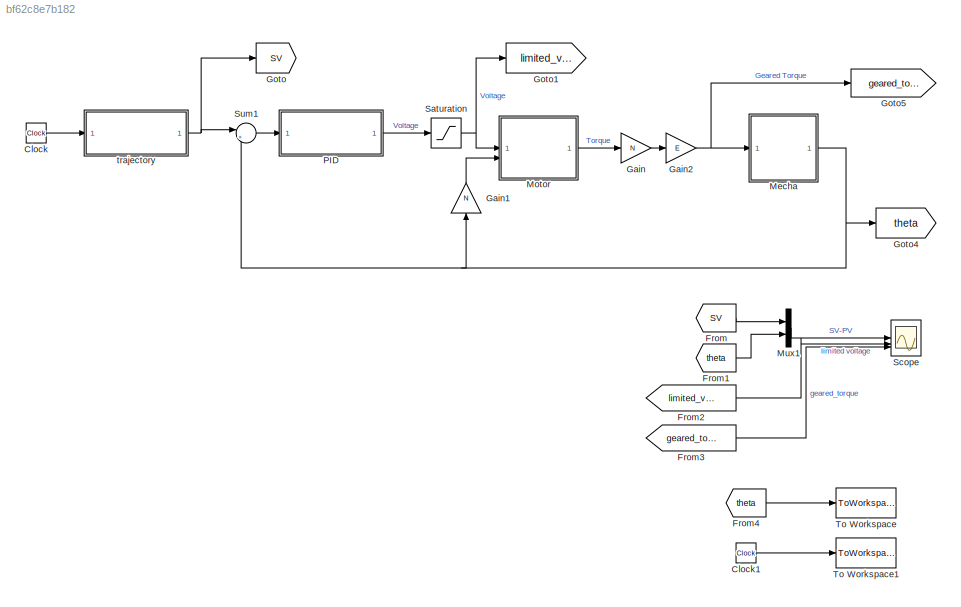
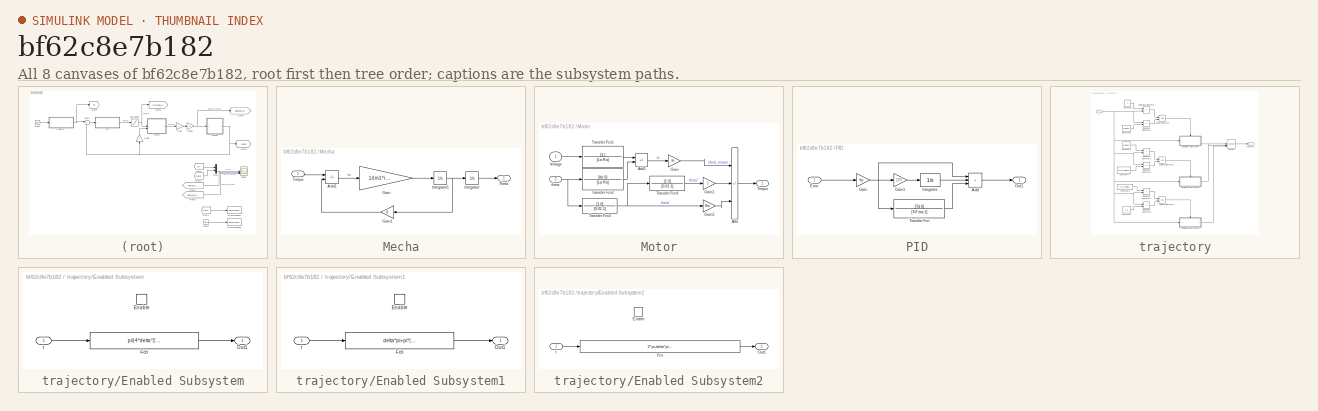
[diagram: thumbnail index - all 8 canvases of the model, root first then tree order]
MODEL slx_bf62c8e7b182
KIND model
CONFIG AbsTol = auto
CONFIG EnableMultiTasking = on
CONFIG FixedStep = auto
CONFIG MaxStep = auto
CONFIG MinStep = auto
CONFIG PreLoadFcn = initialize_para;
CONFIG RelTol = 1e-3
CONFIG SampleTimeConstraint = Unconstrained
CONFIG SolverName = ode45
CONFIG StartTime = 0.0
CONFIG StopTime = 2.5
BLOCK [Clock] Clock
  Decimation = 1
BLOCK [Clock] Clock1
  Decimation = 1
BLOCK [From] From
  CloseFcn = tagdialog Close
  GotoTag = SV
  TagVisibility = global
BLOCK [From] From1
  CloseFcn = tagdialog Close
  GotoTag = theta
  TagVisibility = global
BLOCK [From] From2
  CloseFcn = tagdialog Close
  GotoTag = limited_voltage
  TagVisibility = global
BLOCK [From] From3
  CloseFcn = tagdialog Close
  GotoTag = geared_torque
  TagVisibility = global
BLOCK [From] From4
  CloseFcn = tagdialog Close
  GotoTag = theta
  TagVisibility = global
BLOCK [Gain] Gain
  Gain = N
BLOCK [Gain] Gain1
  Gain = N
  NameLocation = right
BLOCK [Gain] Gain2
  Gain = E
BLOCK [Goto] Goto
  GotoTag = SV
  TagVisibility = global
BLOCK [Goto] Goto1
  GotoTag = limited_voltage
  TagVisibility = global
BLOCK [Goto] Goto4
  GotoTag = theta
  TagVisibility = global
BLOCK [Goto] Goto5
  GotoTag = geared_torque
  TagVisibility = global
BLOCK [SubSystem] Mecha
BLOCK [Sum] Mecha/Add1
  IconShape = rectangular
  Inputs = +-
BLOCK [Gain] Mecha/Gain
  Gain = 1/(m1*r1^2+Izzg1)
BLOCK [Gain] Mecha/Gain1
  Gain = c1
  NameLocation = top
BLOCK [Integrator] Mecha/Integrator
BLOCK [Integrator] Mecha/Integrator1
BLOCK [Outport] Mecha/Theta
BLOCK [Inport] Mecha/Torque
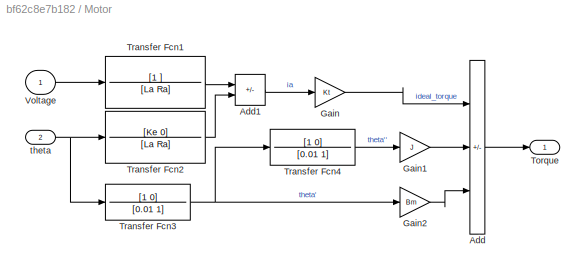
BLOCK [SubSystem] Motor
BLOCK [Sum] Motor/Add
  IconShape = rectangular
  Inputs = +--
BLOCK [Sum] Motor/Add1
  IconShape = rectangular
  Inputs = +-
BLOCK [Gain] Motor/Gain
  Gain = Kt
BLOCK [Gain] Motor/Gain1
  Gain = J
BLOCK [Gain] Motor/Gain2
  Gain = Bm
BLOCK [Outport] Motor/Torque
BLOCK [TransferFcn] Motor/Transfer Fcn1
  Denominator = [La Ra]
  Numerator = [1 ]
BLOCK [TransferFcn] Motor/Transfer Fcn2
  Denominator = [La Ra]
  Numerator = [Ke 0]
BLOCK [TransferFcn] Motor/Transfer Fcn3
  Denominator = [0.01 1]
  Numerator = [1 0]
BLOCK [TransferFcn] Motor/Transfer Fcn4
  Denominator = [0.01 1]
  Numerator = [1 0]
BLOCK [Inport] Motor/Voltage
BLOCK [Inport] Motor/theta
  Port = 2
BLOCK [Mux] Mux1
  DisplayOption = bar
  Inputs = 2
BLOCK [SubSystem] PID
BLOCK [Sum] PID/Add
  IconShape = rectangular
  Inputs = +++
BLOCK [Inport] PID/Error
BLOCK [Gain] PID/Gain
  Gain = Kp
BLOCK [Gain] PID/Gain1
  Gain = 1/Ti
BLOCK [Integrator] PID/Integrator
BLOCK [Outport] PID/Out1
BLOCK [TransferFcn] PID/Transfer Fcn
  Denominator = [Td*eta 1]
  Numerator = [Td 0]
BLOCK [Saturate] Saturation
  UpperLimit = 20
BLOCK [Scope] Scope
  Floating = off
  NumInputPorts = 3
  ScopeSpecificationString = Simulink.scopes.TimeScopeBlockCfg('CurrentConfiguration', extmgr.ConfigurationSet(extmgr.Configuration('Core','General UI',true),extmgr.Configuration('Core','Source UI',true),extmgr.Configuration('Sources','WiredSimulink',true,'DataLogging',true,'DataLoggingSaveFormat','StructureWithTime','DataLoggingDecimation','1','DataLoggingDecimateData',true),extmgr.Configuration('Visuals','Time Domain',true,...<+3350ch>
BLOCK [Sum] Sum1
  Inputs = |+-
BLOCK [ToWorkspace] To Workspace
  MaxDataPoints = inf
  SampleTime = 0.1
  VariableName = theta
BLOCK [ToWorkspace] To Workspace1
  MaxDataPoints = inf
  SampleTime = 0.1
  VariableName = t
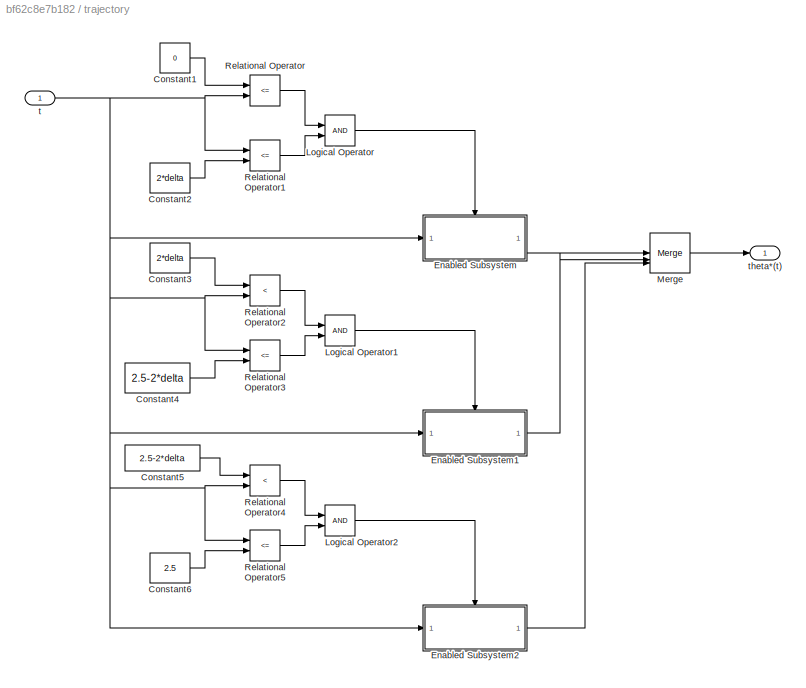
BLOCK [SubSystem] trajectory
BLOCK [Constant] trajectory/Constant1
  Value = 0
BLOCK [Constant] trajectory/Constant2
  Value = 2*delta
BLOCK [Constant] trajectory/Constant3
  Value = 2*delta
BLOCK [Constant] trajectory/Constant4
  Value = 2.5-2*delta
BLOCK [Constant] trajectory/Constant5
  Value = 2.5-2*delta
BLOCK [Constant] trajectory/Constant6
  Value = 2.5
BLOCK [SubSystem] trajectory/Enabled Subsystem
  TreatAsAtomicUnit = on
BLOCK [EnablePort] trajectory/Enabled Subsystem/Enable
BLOCK [Fcn] trajectory/Enabled Subsystem/Fcn
  Expr = pi/(4*delta^2)*u[1]^3-pi/(16*delta^3)*u[1]^4
BLOCK [Outport] trajectory/Enabled Subsystem/Out1
BLOCK [Inport] trajectory/Enabled Subsystem/t
  IconDisplay = Port number and signal name
BLOCK [SubSystem] trajectory/Enabled Subsystem1
  TreatAsAtomicUnit = on
BLOCK [EnablePort] trajectory/Enabled Subsystem1/Enable
BLOCK [Fcn] trajectory/Enabled Subsystem1/Fcn
  Expr = delta*pi+pi*(u[1]-2*delta)
BLOCK [Outport] trajectory/Enabled Subsystem1/Out1
BLOCK [Inport] trajectory/Enabled Subsystem1/t
  IconDisplay = Port number and signal name
BLOCK [SubSystem] trajectory/Enabled Subsystem2
  TreatAsAtomicUnit = on
BLOCK [EnablePort] trajectory/Enabled Subsystem2/Enable
BLOCK [Fcn] trajectory/Enabled Subsystem2/Fcn
  Expr = 2*pi-delta*pi+pi*(u[1]-2)-pi/(4*delta^2)*(u[1]-2)^3+pi/(16*delta^3)*(u[1]-2)^4
BLOCK [Outport] trajectory/Enabled Subsystem2/Out1
BLOCK [Inport] trajectory/Enabled Subsystem2/t
  IconDisplay = Port number and signal name
BLOCK [Logic] trajectory/Logical Operator
  AllPortsSameDT = off
  OutDataTypeStr = boolean
BLOCK [Logic] trajectory/Logical Operator1
  AllPortsSameDT = off
  OutDataTypeStr = boolean
BLOCK [Logic] trajectory/Logical Operator2
  AllPortsSameDT = off
  OutDataTypeStr = boolean
BLOCK [Merge] trajectory/Merge
  Inputs = 3
BLOCK [RelationalOperator] trajectory/Relational Operator
  InputSameDT = off
  Operator = <=
  OutDataTypeStr = boolean
BLOCK [RelationalOperator] trajectory/Relational Operator1
  InputSameDT = off
  Operator = <=
  OutDataTypeStr = boolean
BLOCK [RelationalOperator] trajectory/Relational Operator2
  InputSameDT = off
  Operator = <
  OutDataTypeStr = boolean
BLOCK [RelationalOperator] trajectory/Relational Operator3
  InputSameDT = off
  Operator = <=
  OutDataTypeStr = boolean
BLOCK [RelationalOperator] trajectory/Relational Operator4
  InputSameDT = off
  Operator = <
  OutDataTypeStr = boolean
BLOCK [RelationalOperator] trajectory/Relational Operator5
  InputSameDT = off
  Operator = <=
  OutDataTypeStr = boolean
BLOCK [Inport] trajectory/t
BLOCK [Outport] trajectory/theta*(t)
LINE Clock1:1 -> To Workspace1:1
LINE Clock:1 -> trajectory:1
LINE From1:1 -> Mux1:2
LINE From2:1 -> Scope:2
LINE From3:1 -> Scope:3
LINE From4:1 -> To Workspace:1
LINE From:1 -> Mux1:1
LINE Gain1:1 -> Motor:2
NET Gain2:1 -> Goto5:1, Mecha:1
LINE Gain:1 -> Gain2:1
LINE Mecha/Add1:1 -> Mecha/Gain:1
LINE Mecha/Gain1:1 -> Mecha/Add1:2
LINE Mecha/Gain:1 -> Mecha/Integrator1:1
NET Mecha/Integrator1:1 -> Mecha/Gain1:1, Mecha/Integrator:1
LINE Mecha/Integrator:1 -> Mecha/Theta:1
LINE Mecha/Torque:1 -> Mecha/Add1:1
NET Mecha:1 -> Gain1:1, Goto4:1, Sum1:2
LINE Motor/Add1:1 -> Motor/Gain:1
LINE Motor/Add:1 -> Motor/Torque:1
LINE Motor/Gain1:1 -> Motor/Add:2
LINE Motor/Gain2:1 -> Motor/Add:3
LINE Motor/Gain:1 -> Motor/Add:1
LINE Motor/Transfer Fcn1:1 -> Motor/Add1:1
LINE Motor/Transfer Fcn2:1 -> Motor/Add1:2
NET Motor/Transfer Fcn3:1 -> Motor/Gain2:1, Motor/Transfer Fcn4:1
LINE Motor/Transfer Fcn4:1 -> Motor/Gain1:1
LINE Motor/Voltage:1 -> Motor/Transfer Fcn1:1
NET Motor/theta:1 -> Motor/Transfer Fcn2:1, Motor/Transfer Fcn3:1
LINE Motor:1 -> Gain:1
LINE Mux1:1 -> Scope:1
LINE PID/Add:1 -> PID/Out1:1
LINE PID/Error:1 -> PID/Gain:1
LINE PID/Gain1:1 -> PID/Integrator:1
NET PID/Gain:1 -> PID/Add:1, PID/Gain1:1, PID/Transfer Fcn:1
LINE PID/Integrator:1 -> PID/Add:2
LINE PID/Transfer Fcn:1 -> PID/Add:3
LINE PID:1 -> Saturation:1
NET Saturation:1 -> Goto1:1, Motor:1
LINE Sum1:1 -> PID:1
LINE trajectory/Constant1:1 -> trajectory/Relational Operator:1
LINE trajectory/Constant2:1 -> trajectory/Relational Operator1:2
LINE trajectory/Constant3:1 -> trajectory/Relational Operator2:1
LINE trajectory/Constant4:1 -> trajectory/Relational Operator3:2
LINE trajectory/Constant5:1 -> trajectory/Relational Operator4:1
LINE trajectory/Constant6:1 -> trajectory/Relational Operator5:2
LINE trajectory/Enabled Subsystem/Fcn:1 -> trajectory/Enabled Subsystem/Out1:1
LINE trajectory/Enabled Subsystem/t:1 -> trajectory/Enabled Subsystem/Fcn:1
LINE trajectory/Enabled Subsystem1/Fcn:1 -> trajectory/Enabled Subsystem1/Out1:1
LINE trajectory/Enabled Subsystem1/t:1 -> trajectory/Enabled Subsystem1/Fcn:1
LINE trajectory/Enabled Subsystem1:1 -> trajectory/Merge:2
LINE trajectory/Enabled Subsystem2/Fcn:1 -> trajectory/Enabled Subsystem2/Out1:1
LINE trajectory/Enabled Subsystem2/t:1 -> trajectory/Enabled Subsystem2/Fcn:1
LINE trajectory/Enabled Subsystem2:1 -> trajectory/Merge:3
LINE trajectory/Enabled Subsystem:1 -> trajectory/Merge:1
LINE trajectory/Logical Operator1:1 -> trajectory/Enabled Subsystem1:enable
LINE trajectory/Logical Operator2:1 -> trajectory/Enabled Subsystem2:enable
LINE trajectory/Logical Operator:1 -> trajectory/Enabled Subsystem:enable
LINE trajectory/Merge:1 -> trajectory/theta*(t):1
LINE trajectory/Relational Operator1:1 -> trajectory/Logical Operator:2
LINE trajectory/Relational Operator2:1 -> trajectory/Logical Operator1:1
LINE trajectory/Relational Operator3:1 -> trajectory/Logical Operator1:2
LINE trajectory/Relational Operator4:1 -> trajectory/Logical Operator2:1
LINE trajectory/Relational Operator5:1 -> trajectory/Logical Operator2:2
LINE trajectory/Relational Operator:1 -> trajectory/Logical Operator:1
NET trajectory/t:1 -> trajectory/Enabled Subsystem1:1, trajectory/Enabled Subsystem2:1, trajectory/Enabled Subsystem:1, trajectory/Relational Operator1:1, trajectory/Relational Operator2:2, trajectory/Relational Operator3:1, trajectory/Relational Operator4:2, trajectory/Relational Operator5:1, trajectory/Relational Operator:2
NET trajectory:1 -> Goto:1, Sum1:1
note: NET lines group one-source signal fan-out (src -> all destinations, sorted); 1:1 wires keep LINE
